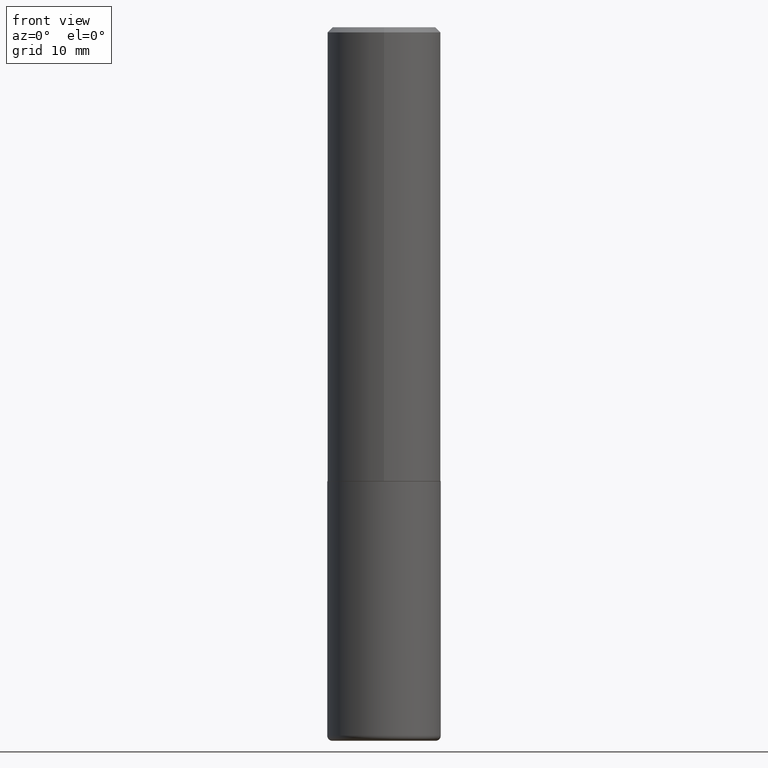
[diagram: clean part render]
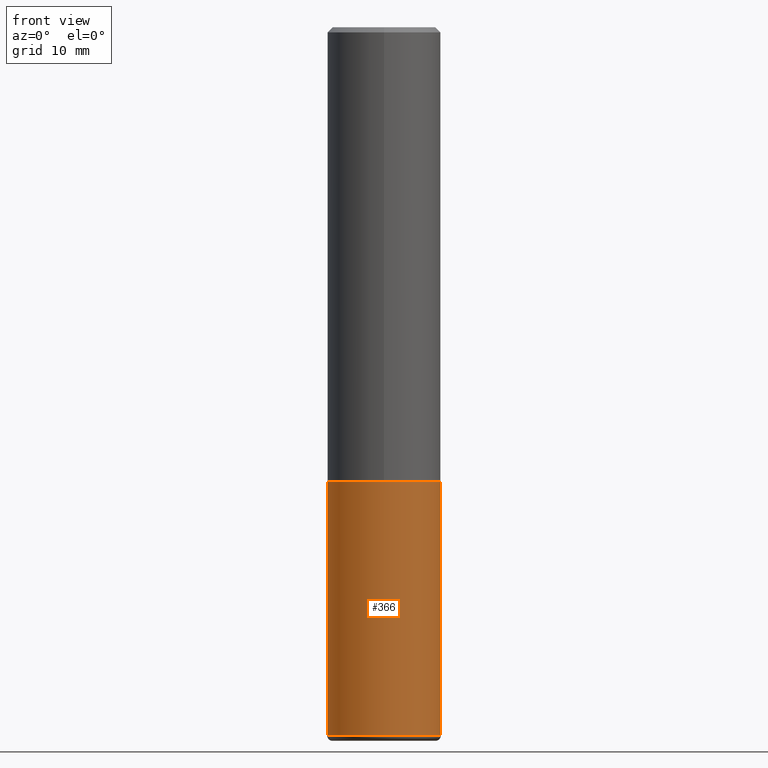
[diagram: same view with one face highlighted and labeled with its STEP entity id]
A machine part, front view. The second image highlights one B-rep face of the part: STEP entity #366.
In plain terms, the highlighted cylindrical surface (partial cylindrical patch) has radius 5.5562 mm, axis along (-0, 0, 1).
Its self-contained STEP definition (entity closure, byte-faithful):
#24 = VECTOR ( 'NONE', #295, 39.37007874015748143 ) ;
#54 = EDGE_CURVE ( 'NONE', #371, #392, #307, .T. ) ;
#61 = ORIENTED_EDGE ( 'NONE', *, *, #195, .F. ) ;
#62 = CARTESIAN_POINT ( 'NONE',  ( -0.2187500000000000000, 1.554312234475219157E-15, -1.076017050993260622E-29 ) ) ;
#70 = VERTEX_POINT ( 'NONE', #185 ) ;
#73 = CYLINDRICAL_SURFACE ( 'NONE', #181, 0.2187500000000000000 ) ;
#77 = CARTESIAN_POINT ( 'NONE',  ( -0.2187499999999999445, -7.977431820566568982E-15, -2.729999999999999982 ) ) ;
#85 = AXIS2_PLACEMENT_3D ( 'NONE', #190, #91, #261 ) ;
#91 = DIRECTION ( 'NONE',  ( -2.445468806185136597E-29, 3.491481338843145583E-15, 1.000000000000000000 ) ) ;
#106 = FACE_OUTER_BOUND ( 'NONE', #194, .T. ) ;
#110 = CIRCLE ( 'NONE', #85, 0.2187500000000000000 ) ;
#114 = CARTESIAN_POINT ( 'NONE',  ( 0.2187500000000000000, -1.527523085743870843E-15, 1.066663669705360885E-29 ) ) ;
#120 = DIRECTION ( 'NONE',  ( 1.000000000000000000, -6.982962677686267499E-15, 0.000000000000000000 ) ) ;
#142 = LINE ( 'NONE', #114, #168 ) ;
#156 = LINE ( 'NONE', #62, #24 ) ;
#168 = VECTOR ( 'NONE', #341, 39.37007874015748143 ) ;
#169 = CARTESIAN_POINT ( 'NONE',  ( -0.2187500000000000000, -6.266605964533427643E-15, -1.750000000000000000 ) ) ;
#181 = AXIS2_PLACEMENT_3D ( 'NONE', #369, #236, #313 ) ;
#185 = CARTESIAN_POINT ( 'NONE',  ( 0.2187499999999999445, -1.105926714078565662E-14, -2.729999999999999982 ) ) ;
#190 = CARTESIAN_POINT ( 'NONE',  ( 6.676129840885423672E-29, -9.531744055041786561E-15, -2.729999999999999982 ) ) ;
#194 = EDGE_LOOP ( 'NONE', ( #61, #239, #332, #259 ) ) ;
#195 = EDGE_CURVE ( 'NONE', #395, #371, #156, .T. ) ;
#203 = CARTESIAN_POINT ( 'NONE',  ( 0.2187500000000000000, -7.637615428719375514E-15, -1.750000000000000000 ) ) ;
#207 = EDGE_CURVE ( 'NONE', #395, #70, #110, .T. ) ;
#208 = AXIS2_PLACEMENT_3D ( 'NONE', #388, #412, #120 ) ;
#236 = DIRECTION ( 'NONE',  ( -2.445468806185136597E-29, 3.491481338843145583E-15, 1.000000000000000000 ) ) ;
#239 = ORIENTED_EDGE ( 'NONE', *, *, #207, .T. ) ;
#259 = ORIENTED_EDGE ( 'NONE', *, *, #54, .F. ) ;
#261 = DIRECTION ( 'NONE',  ( 1.000000000000000000, -6.982962677686262766E-15, 0.000000000000000000 ) ) ;
#295 = DIRECTION ( 'NONE',  ( -2.445468806185136877E-29, 3.491481338843145188E-15, 1.000000000000000000 ) ) ;
#307 = CIRCLE ( 'NONE', #208, 0.2187500000000000000 ) ;
#313 = DIRECTION ( 'NONE',  ( 1.000000000000000000, -6.982962677686266711E-15, 4.876176775795935232E-29 ) ) ;
#332 = ORIENTED_EDGE ( 'NONE', *, *, #345, .T. ) ;
#341 = DIRECTION ( 'NONE',  ( -2.445468806185136877E-29, 3.491481338843145188E-15, 1.000000000000000000 ) ) ;
#345 = EDGE_CURVE ( 'NONE', #70, #392, #142, .T. ) ;
#366 = ADVANCED_FACE ( 'NONE', ( #106 ), #73, .T. ) ;
#369 = CARTESIAN_POINT ( 'NONE',  ( 0.000000000000000000, 0.000000000000000000, 0.000000000000000000 ) ) ;
#371 = VERTEX_POINT ( 'NONE', #169 ) ;
#388 = CARTESIAN_POINT ( 'NONE',  ( 4.279570410823988484E-29, -6.110092342975504671E-15, -1.750000000000000000 ) ) ;
#392 = VERTEX_POINT ( 'NONE', #203 ) ;
#395 = VERTEX_POINT ( 'NONE', #77 ) ;
#412 = DIRECTION ( 'NONE',  ( -2.445468806185136597E-29, 3.491481338843145583E-15, 1.000000000000000000 ) ) ;